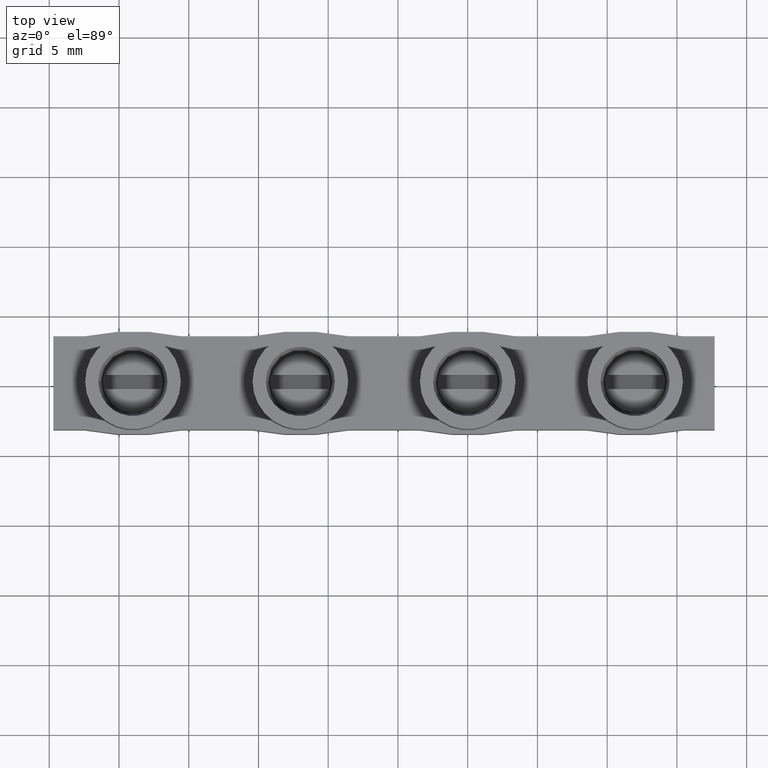
[diagram: clean part render]
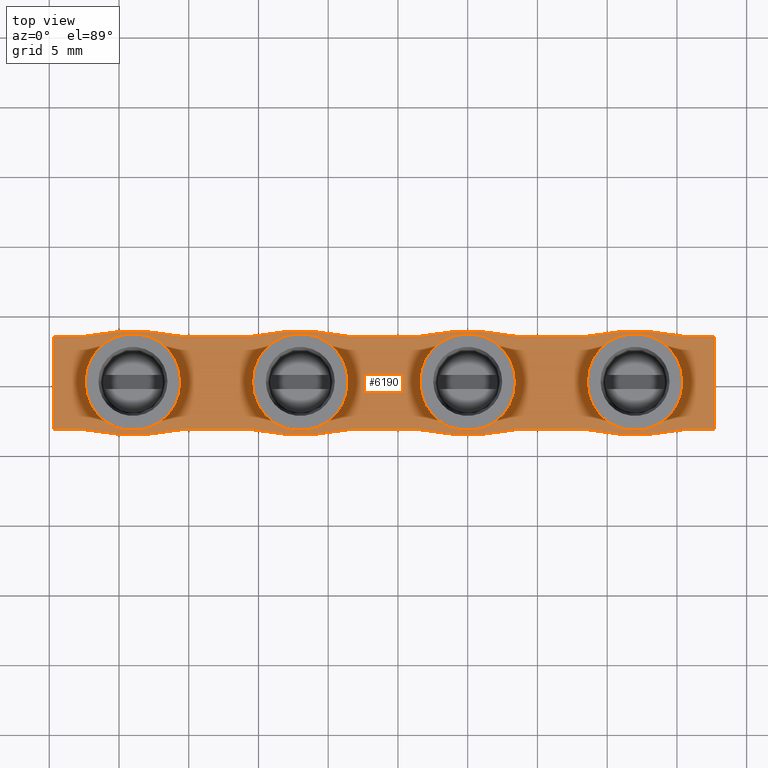
[diagram: same view with one face highlighted and labeled with its STEP entity id]
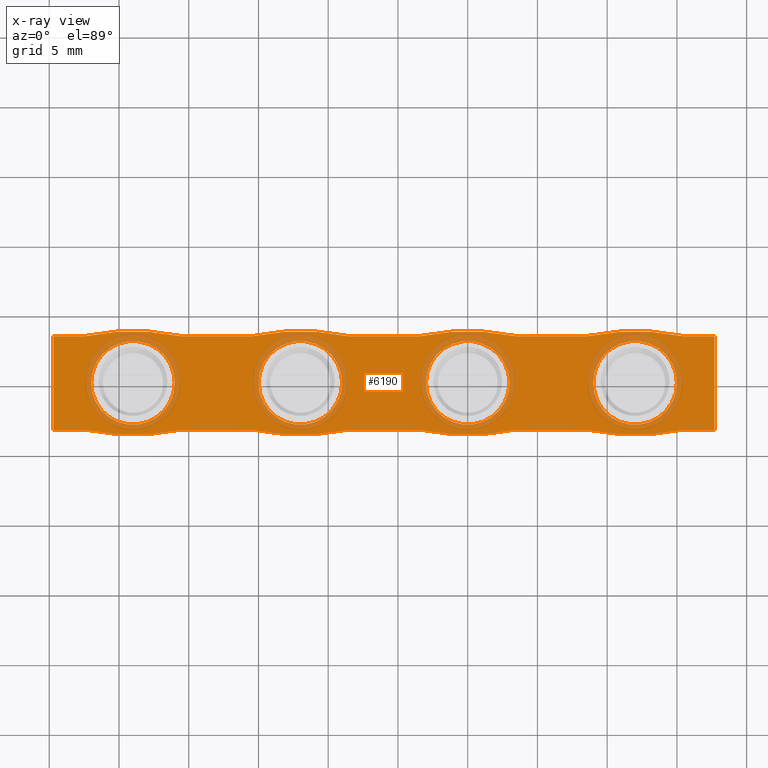
[diagram: x-ray of the same camera — body ghosted, the highlighted face saturated]
A machine part, top view. The second image highlights one B-rep face of the part: STEP entity #6190.
The next image is the same camera in x-ray: the body ghosted, the highlighted face saturated — about 16% of this face is hidden behind the body in this view.
In plain terms, the highlighted planar face has unit normal (0, 0, -1).
Its self-contained STEP definition (entity closure, byte-faithful):
#22 = EDGE_CURVE ( 'NONE', #1152, #1191, #5245, .T. ) ;
#23 = EDGE_CURVE ( 'NONE', #1161, #1189, #5252, .T. ) ;
#25 = EDGE_CURVE ( 'NONE', #1202, #503, #5256, .T. ) ;
#32 = EDGE_CURVE ( 'NONE', #1162, #1175, #5345, .T. ) ;
#39 = EDGE_CURVE ( 'NONE', #1170, #1189, #2882, .T. ) ;
#52 = EDGE_CURVE ( 'NONE', #1161, #503, #2929, .T. ) ;
#67 = EDGE_CURVE ( 'NONE', #1187, #1171, #3003, .T. ) ;
#95 = EDGE_CURVE ( 'NONE', #1213, #1144, #3060, .T. ) ;
#107 = EDGE_CURVE ( 'NONE', #1031, #1127, #4877, .T. ) ;
#327 = AXIS2_PLACEMENT_3D ( 'NONE', #5515, #5534, #5535 ) ;
#455 = VERTEX_POINT ( 'NONE', #3226 ) ;
#456 = VERTEX_POINT ( 'NONE', #3208 ) ;
#464 = VERTEX_POINT ( 'NONE', #3180 ) ;
#465 = VERTEX_POINT ( 'NONE', #3221 ) ;
#469 = VERTEX_POINT ( 'NONE', #3196 ) ;
#471 = VERTEX_POINT ( 'NONE', #3211 ) ;
#488 = VERTEX_POINT ( 'NONE', #3183 ) ;
#495 = VERTEX_POINT ( 'NONE', #3235 ) ;
#501 = VERTEX_POINT ( 'NONE', #3190 ) ;
#503 = VERTEX_POINT ( 'NONE', #3195 ) ;
#506 = VERTEX_POINT ( 'NONE', #3199 ) ;
#515 = VERTEX_POINT ( 'NONE', #2188 ) ;
#834 = EDGE_LOOP ( 'NONE', ( #2750, #2748 ) ) ;
#903 = EDGE_LOOP ( 'NONE', ( #2708, #2751, #2728, #2726, #2695, #2700, #2738, #2744, #2696, #2747, #2749, #2690, #2709, #2701, #2656, #2662, #2739, #2720, #2742, #2689 ) ) ;
#921 = EDGE_LOOP ( 'NONE', ( #2740, #2694 ) ) ;
#938 = EDGE_LOOP ( 'NONE', ( #2718, #2702 ) ) ;
#951 = EDGE_LOOP ( 'NONE', ( #2706, #2730 ) ) ;
#1031 = VERTEX_POINT ( 'NONE', #1251 ) ;
#1127 = VERTEX_POINT ( 'NONE', #1315 ) ;
#1144 = VERTEX_POINT ( 'NONE', #1320 ) ;
#1152 = VERTEX_POINT ( 'NONE', #1303 ) ;
#1156 = VERTEX_POINT ( 'NONE', #1339 ) ;
#1161 = VERTEX_POINT ( 'NONE', #1313 ) ;
#1162 = VERTEX_POINT ( 'NONE', #1362 ) ;
#1170 = VERTEX_POINT ( 'NONE', #1318 ) ;
#1171 = VERTEX_POINT ( 'NONE', #1301 ) ;
#1175 = VERTEX_POINT ( 'NONE', #1322 ) ;
#1187 = VERTEX_POINT ( 'NONE', #1410 ) ;
#1189 = VERTEX_POINT ( 'NONE', #1400 ) ;
#1191 = VERTEX_POINT ( 'NONE', #1405 ) ;
#1202 = VERTEX_POINT ( 'NONE', #1369 ) ;
#1213 = VERTEX_POINT ( 'NONE', #1391 ) ;
#1224 = VERTEX_POINT ( 'NONE', #1397 ) ;
#1251 = CARTESIAN_POINT ( 'NONE',  ( -21.00000000000000000, -4.211188893243326600E-015, -0.9000000000000014700 ) ) ;
#1301 = CARTESIAN_POINT ( 'NONE',  ( 3.426733138135080300, 3.350000000000085400, -0.9000000000000014700 ) ) ;
#1303 = CARTESIAN_POINT ( 'NONE',  ( -15.00000000000000000, -2.289291466493766400E-015, -0.9000000000000014700 ) ) ;
#1313 = CARTESIAN_POINT ( 'NONE',  ( -15.42673313813508100, 3.350000000000082700, -0.9000000000000014700 ) ) ;
#1315 = CARTESIAN_POINT ( 'NONE',  ( -27.00000000000000000, -4.578582932987532800E-015, -0.9000000000000014700 ) ) ;
#1318 = CARTESIAN_POINT ( 'NONE',  ( -3.426733138135080300, 3.350000000000084500, -0.9000000000000014700 ) ) ;
#1320 = CARTESIAN_POINT ( 'NONE',  ( -3.447100230629700900, -3.349999999999916600, -0.9000000000000014700 ) ) ;
#1322 = CARTESIAN_POINT ( 'NONE',  ( 2.999999999999999100, 3.673940397442058900E-016, -0.9000000000000014700 ) ) ;
#1339 = CARTESIAN_POINT ( 'NONE',  ( 15.00000000000000000, 1.833357540569354400E-015, -0.9000000000000014700 ) ) ;
#1362 = CARTESIAN_POINT ( 'NONE',  ( -2.999999999999999100, 0.0000000000000000000, -0.9000000000000014700 ) ) ;
#1369 = CARTESIAN_POINT ( 'NONE',  ( -27.42673313813508100, 3.350000000000080000, -0.9000000000000014700 ) ) ;
#1391 = CARTESIAN_POINT ( 'NONE',  ( -8.552899769370284800, -3.349999999999917900, -0.9000000000000014700 ) ) ;
#1397 = CARTESIAN_POINT ( 'NONE',  ( 9.000000000000001800, 1.465963500825148300E-015, -0.9000000000000014700 ) ) ;
#1400 = CARTESIAN_POINT ( 'NONE',  ( -8.573266861864919300, 3.350000000000083600, -0.9000000000000014700 ) ) ;
#1405 = CARTESIAN_POINT ( 'NONE',  ( -9.000000000000001800, -1.921897426749560600E-015, -0.9000000000000014700 ) ) ;
#1410 = CARTESIAN_POINT ( 'NONE',  ( 8.573266861864922800, 3.350000000000086200, -0.9000000000000014700 ) ) ;
#1424 = CARTESIAN_POINT ( 'NONE',  ( 12.00000000000000400, 13.45000000000008600, -0.9000000000000014700 ) ) ;
#1470 = CARTESIAN_POINT ( 'NONE',  ( 0.0000000000000000000, 0.0000000000000000000, -0.9000000000000014700 ) ) ;
#1494 = DIRECTION ( 'NONE',  ( 0.0000000000000000000, 0.0000000000000000000, 1.000000000000000000 ) ) ;
#1496 = DIRECTION ( 'NONE',  ( -1.000000000000000000, 0.0000000000000000000, 0.0000000000000000000 ) ) ;
#1502 = DIRECTION ( 'NONE',  ( 0.0000000000000000000, 0.0000000000000000000, -1.000000000000000000 ) ) ;
#1528 = DIRECTION ( 'NONE',  ( -1.000000000000000000, 0.0000000000000000000, 0.0000000000000000000 ) ) ;
#1679 = DIRECTION ( 'NONE',  ( 2.009125974575783600E-016, -1.000000000000000000, 0.0000000000000000000 ) ) ;
#1692 = LINE ( 'NONE', #1720, #4957 ) ;
#1693 = LINE ( 'NONE', #1695, #4966 ) ;
#1695 = CARTESIAN_POINT ( 'NONE',  ( -29.69999999999999600, -3.349999999999914800, -0.9000000000000014700 ) ) ;
#1717 = DIRECTION ( 'NONE',  ( 1.000000000000000000, 1.245679091791856200E-016, -0.0000000000000000000 ) ) ;
#1720 = CARTESIAN_POINT ( 'NONE',  ( -7.849999999999992500, -3.349999999999918400, -0.9000000000000014700 ) ) ;
#1767 = CARTESIAN_POINT ( 'NONE',  ( -23.99999999999999600, 13.45000000000007900, -0.9000000000000014700 ) ) ;
#1770 = DIRECTION ( 'NONE',  ( 0.0000000000000000000, 0.0000000000000000000, -1.000000000000000000 ) ) ;
#1776 = DIRECTION ( 'NONE',  ( -1.000000000000000000, 0.0000000000000000000, 0.0000000000000000000 ) ) ;
#1778 = CARTESIAN_POINT ( 'NONE',  ( -7.849999999999992500, 3.350000000000082700, -0.9000000000000014700 ) ) ;
#1791 = DIRECTION ( 'NONE',  ( -1.000000000000000000, -1.245679091791856200E-016, -0.0000000000000000000 ) ) ;
#1800 = LINE ( 'NONE', #1778, #5050 ) ;
#1986 = CARTESIAN_POINT ( 'NONE',  ( -12.00000000000000000, -2.289291466493766400E-015, -0.9000000000000014700 ) ) ;
#1987 = CARTESIAN_POINT ( 'NONE',  ( 12.00000000000000000, 1.465963500825148300E-015, -0.9000000000000014700 ) ) ;
#1989 = DIRECTION ( 'NONE',  ( 0.0000000000000000000, 0.0000000000000000000, 1.000000000000000000 ) ) ;
#1990 = DIRECTION ( 'NONE',  ( 0.0000000000000000000, 0.0000000000000000000, 1.000000000000000000 ) ) ;
#2012 = DIRECTION ( 'NONE',  ( -1.000000000000000000, 0.0000000000000000000, 0.0000000000000000000 ) ) ;
#2017 = DIRECTION ( 'NONE',  ( -1.000000000000000000, 0.0000000000000000000, 0.0000000000000000000 ) ) ;
#2102 = CARTESIAN_POINT ( 'NONE',  ( 4.150000000000007500, -3.349999999999916200, -0.9000000000000014700 ) ) ;
#2103 = LINE ( 'NONE', #2102, #5190 ) ;
#2104 = CARTESIAN_POINT ( 'NONE',  ( 12.00000000000000400, -13.25000000000034300, -0.9000000000000014700 ) ) ;
#2105 = DIRECTION ( 'NONE',  ( -0.0000000000000000000, -0.0000000000000000000, -1.000000000000000000 ) ) ;
#2106 = DIRECTION ( 'NONE',  ( 1.000000000000000000, -3.582024876648227500E-015, 0.0000000000000000000 ) ) ;
#2110 = DIRECTION ( 'NONE',  ( 0.0000000000000000000, 0.0000000000000000000, 1.000000000000000000 ) ) ;
#2115 = DIRECTION ( 'NONE',  ( 0.0000000000000000000, 1.000000000000000000, 0.0000000000000000000 ) ) ;
#2116 = CARTESIAN_POINT ( 'NONE',  ( 12.00000000000000000, 1.465963500825148300E-015, -0.9000000000000014700 ) ) ;
#2117 = DIRECTION ( 'NONE',  ( 1.000000000000000000, 1.245679091791856200E-016, -0.0000000000000000000 ) ) ;
#2124 = DIRECTION ( 'NONE',  ( -1.000000000000000000, 0.0000000000000000000, 0.0000000000000000000 ) ) ;
#2133 = CARTESIAN_POINT ( 'NONE',  ( 17.69999999999921800, -3.349999999999924100, -0.9000000000000014700 ) ) ;
#2137 = LINE ( 'NONE', #2133, #5165 ) ;
#2144 = DIRECTION ( 'NONE',  ( 1.000000000000000000, 1.245679091791856200E-016, -0.0000000000000000000 ) ) ;
#2149 = DIRECTION ( 'NONE',  ( -1.000000000000000000, 0.0000000000000000000, 0.0000000000000000000 ) ) ;
#2157 = CARTESIAN_POINT ( 'NONE',  ( -11.99999999999999600, 13.45000000000008300, -0.9000000000000014700 ) ) ;
#2164 = LINE ( 'NONE', #2175, #5217 ) ;
#2167 = DIRECTION ( 'NONE',  ( 0.0000000000000000000, 0.0000000000000000000, -1.000000000000000000 ) ) ;
#2175 = CARTESIAN_POINT ( 'NONE',  ( 28.15000000000000900, -3.349999999999912600, -0.9000000000000014700 ) ) ;
#2188 = CARTESIAN_POINT ( 'NONE',  ( 8.552899769370297300, -3.349999999999914800, -0.9000000000000014700 ) ) ;
#2656 = ORIENTED_EDGE ( 'NONE', *, *, #4644, .T. ) ;
#2662 = ORIENTED_EDGE ( 'NONE', *, *, #4632, .T. ) ;
#2689 = ORIENTED_EDGE ( 'NONE', *, *, #4680, .F. ) ;
#2690 = ORIENTED_EDGE ( 'NONE', *, *, #4659, .F. ) ;
#2694 = ORIENTED_EDGE ( 'NONE', *, *, #107, .F. ) ;
#2695 = ORIENTED_EDGE ( 'NONE', *, *, #3472, .T. ) ;
#2696 = ORIENTED_EDGE ( 'NONE', *, *, #4684, .T. ) ;
#2700 = ORIENTED_EDGE ( 'NONE', *, *, #3441, .T. ) ;
#2701 = ORIENTED_EDGE ( 'NONE', *, *, #4651, .F. ) ;
#2702 = ORIENTED_EDGE ( 'NONE', *, *, #4520, .F. ) ;
#2706 = ORIENTED_EDGE ( 'NONE', *, *, #4635, .F. ) ;
#2708 = ORIENTED_EDGE ( 'NONE', *, *, #39, .T. ) ;
#2709 = ORIENTED_EDGE ( 'NONE', *, *, #4636, .T. ) ;
#2718 = ORIENTED_EDGE ( 'NONE', *, *, #22, .F. ) ;
#2720 = ORIENTED_EDGE ( 'NONE', *, *, #4634, .F. ) ;
#2726 = ORIENTED_EDGE ( 'NONE', *, *, #25, .F. ) ;
#2728 = ORIENTED_EDGE ( 'NONE', *, *, #52, .T. ) ;
#2730 = ORIENTED_EDGE ( 'NONE', *, *, #4524, .F. ) ;
#2738 = ORIENTED_EDGE ( 'NONE', *, *, #3435, .T. ) ;
#2739 = ORIENTED_EDGE ( 'NONE', *, *, #4669, .T. ) ;
#2740 = ORIENTED_EDGE ( 'NONE', *, *, #4666, .F. ) ;
#2742 = ORIENTED_EDGE ( 'NONE', *, *, #67, .T. ) ;
#2744 = ORIENTED_EDGE ( 'NONE', *, *, #3469, .F. ) ;
#2747 = ORIENTED_EDGE ( 'NONE', *, *, #4642, .F. ) ;
#2748 = ORIENTED_EDGE ( 'NONE', *, *, #3382, .F. ) ;
#2749 = ORIENTED_EDGE ( 'NONE', *, *, #95, .T. ) ;
#2750 = ORIENTED_EDGE ( 'NONE', *, *, #32, .F. ) ;
#2751 = ORIENTED_EDGE ( 'NONE', *, *, #23, .F. ) ;
#2841 = CARTESIAN_POINT ( 'NONE',  ( -23.99999999999999600, -13.25000000000035000, -0.9000000000000014700 ) ) ;
#2846 = DIRECTION ( 'NONE',  ( -0.0000000000000000000, -0.0000000000000000000, -1.000000000000000000 ) ) ;
#2850 = DIRECTION ( 'NONE',  ( 1.000000000000000000, 0.0000000000000000000, 0.0000000000000000000 ) ) ;
#2852 = DIRECTION ( 'NONE',  ( 1.000000000000000000, 0.0000000000000000000, 0.0000000000000000000 ) ) ;
#2856 = CARTESIAN_POINT ( 'NONE',  ( -12.00000000000000000, -2.289291466493766400E-015, -0.9000000000000014700 ) ) ;
#2857 = DIRECTION ( 'NONE',  ( 0.0000000000000000000, 0.0000000000000000000, 1.000000000000000000 ) ) ;
#2858 = DIRECTION ( 'NONE',  ( -1.000000000000000000, 0.0000000000000000000, 0.0000000000000000000 ) ) ;
#2863 = CARTESIAN_POINT ( 'NONE',  ( 0.0000000000000000000, 0.0000000000000000000, -0.9000000000000014700 ) ) ;
#2864 = DIRECTION ( 'NONE',  ( 0.0000000000000000000, 0.0000000000000000000, 1.000000000000000000 ) ) ;
#2867 = DIRECTION ( 'NONE',  ( -0.0000000000000000000, -0.0000000000000000000, -1.000000000000000000 ) ) ;
#2871 = DIRECTION ( 'NONE',  ( -1.000000000000000000, 0.0000000000000000000, 0.0000000000000000000 ) ) ;
#2872 = CARTESIAN_POINT ( 'NONE',  ( -11.99999999999999600, -13.25000000000034600, -0.9000000000000014700 ) ) ;
#2881 = CARTESIAN_POINT ( 'NONE',  ( 4.150000000000007500, 3.350000000000084900, -0.9000000000000014700 ) ) ;
#2882 = LINE ( 'NONE', #2881, #5314 ) ;
#2915 = DIRECTION ( 'NONE',  ( -1.000000000000000000, -1.245679091791856200E-016, -0.0000000000000000000 ) ) ;
#2929 = LINE ( 'NONE', #2951, #5300 ) ;
#2949 = DIRECTION ( 'NONE',  ( -1.000000000000000000, -1.245679091791856200E-016, -0.0000000000000000000 ) ) ;
#2951 = CARTESIAN_POINT ( 'NONE',  ( 4.150000000000007500, 3.350000000000084900, -0.9000000000000014700 ) ) ;
#2986 = CARTESIAN_POINT ( 'NONE',  ( 4.150000000000007500, 3.350000000000084900, -0.9000000000000014700 ) ) ;
#2987 = DIRECTION ( 'NONE',  ( -1.000000000000000000, -1.245679091791856200E-016, -0.0000000000000000000 ) ) ;
#3003 = LINE ( 'NONE', #2986, #5332 ) ;
#3060 = LINE ( 'NONE', #3062, #4872 ) ;
#3062 = CARTESIAN_POINT ( 'NONE',  ( 4.150000000000007500, -3.349999999999916200, -0.9000000000000014700 ) ) ;
#3085 = DIRECTION ( 'NONE',  ( 1.000000000000000000, 1.245679091791856200E-016, -0.0000000000000000000 ) ) ;
#3096 = DIRECTION ( 'NONE',  ( -1.000000000000000000, 0.0000000000000000000, 0.0000000000000000000 ) ) ;
#3104 = CARTESIAN_POINT ( 'NONE',  ( -24.00000000000000000, -4.578582932987532800E-015, -0.9000000000000014700 ) ) ;
#3126 = DIRECTION ( 'NONE',  ( 0.0000000000000000000, 0.0000000000000000000, 1.000000000000000000 ) ) ;
#3180 = CARTESIAN_POINT ( 'NONE',  ( -29.69999999999999900, 3.350000000000080000, -0.9000000000000014700 ) ) ;
#3183 = CARTESIAN_POINT ( 'NONE',  ( -27.44710023062970100, -3.349999999999921000, -0.9000000000000014700 ) ) ;
#3190 = CARTESIAN_POINT ( 'NONE',  ( 17.69999999999921800, 3.350000000000087100, -0.9000000000000014700 ) ) ;
#3195 = CARTESIAN_POINT ( 'NONE',  ( -20.57326686186491900, 3.350000000000080900, -0.9000000000000014700 ) ) ;
#3196 = CARTESIAN_POINT ( 'NONE',  ( 15.44710023062971500, -3.349999999999914400, -0.9000000000000014700 ) ) ;
#3199 = CARTESIAN_POINT ( 'NONE',  ( -15.44710023062970100, -3.349999999999918400, -0.9000000000000014700 ) ) ;
#3208 = CARTESIAN_POINT ( 'NONE',  ( 15.42673313813508100, 3.350000000000086700, -0.9000000000000014700 ) ) ;
#3211 = CARTESIAN_POINT ( 'NONE',  ( 3.447100230629714700, -3.349999999999915700, -0.9000000000000014700 ) ) ;
#3221 = CARTESIAN_POINT ( 'NONE',  ( 17.69999999999921800, -3.349999999999913900, -0.9000000000000014700 ) ) ;
#3226 = CARTESIAN_POINT ( 'NONE',  ( -20.55289976937028500, -3.349999999999920200, -0.9000000000000014700 ) ) ;
#3235 = CARTESIAN_POINT ( 'NONE',  ( -29.69999999999999600, -3.349999999999921000, -0.9000000000000014700 ) ) ;
#3382 = EDGE_CURVE ( 'NONE', #1175, #1162, #4901, .T. ) ;
#3435 = EDGE_CURVE ( 'NONE', #495, #488, #1692, .T. ) ;
#3441 = EDGE_CURVE ( 'NONE', #464, #495, #1693, .T. ) ;
#3469 = EDGE_CURVE ( 'NONE', #455, #488, #5032, .T. ) ;
#3472 = EDGE_CURVE ( 'NONE', #1202, #464, #1800, .T. ) ;
#3494 = LINE ( 'NONE', #3525, #5233 ) ;
#3504 = DIRECTION ( 'NONE',  ( -1.000000000000000000, -1.245679091791856200E-016, -0.0000000000000000000 ) ) ;
#3512 = CARTESIAN_POINT ( 'NONE',  ( -24.00000000000000000, -4.578582932987532800E-015, -0.9000000000000014700 ) ) ;
#3513 = DIRECTION ( 'NONE',  ( -1.000000000000000000, 0.0000000000000000000, 0.0000000000000000000 ) ) ;
#3519 = DIRECTION ( 'NONE',  ( 0.0000000000000000000, 0.0000000000000000000, 1.000000000000000000 ) ) ;
#3525 = CARTESIAN_POINT ( 'NONE',  ( 28.15000000000000900, 3.350000000000088500, -0.9000000000000014700 ) ) ;
#3530 = LINE ( 'NONE', #3573, #5231 ) ;
#3543 = DIRECTION ( 'NONE',  ( 1.000000000000000000, 1.245679091791856200E-016, -0.0000000000000000000 ) ) ;
#3555 = DIRECTION ( 'NONE',  ( -0.0000000000000000000, -0.0000000000000000000, -1.000000000000000000 ) ) ;
#3557 = DIRECTION ( 'NONE',  ( 1.000000000000000000, 0.0000000000000000000, 0.0000000000000000000 ) ) ;
#3569 = CARTESIAN_POINT ( 'NONE',  ( 3.469446951953614200E-015, -13.25000000000034500, -0.9000000000000014700 ) ) ;
#3573 = CARTESIAN_POINT ( 'NONE',  ( 4.150000000000007500, -3.349999999999916200, -0.9000000000000014700 ) ) ;
#4445 = CARTESIAN_POINT ( 'NONE',  ( 3.469446951953614200E-015, 13.45000000000008500, -0.9000000000000014700 ) ) ;
#4452 = DIRECTION ( 'NONE',  ( -1.000000000000000000, 0.0000000000000000000, 0.0000000000000000000 ) ) ;
#4470 = DIRECTION ( 'NONE',  ( 0.0000000000000000000, 0.0000000000000000000, -1.000000000000000000 ) ) ;
#4520 = EDGE_CURVE ( 'NONE', #1191, #1152, #5126, .T. ) ;
#4524 = EDGE_CURVE ( 'NONE', #1156, #1224, #5153, .T. ) ;
#4632 = EDGE_CURVE ( 'NONE', #465, #501, #2137, .T. ) ;
#4634 = EDGE_CURVE ( 'NONE', #1187, #456, #5216, .T. ) ;
#4635 = EDGE_CURVE ( 'NONE', #1224, #1156, #5198, .T. ) ;
#4636 = EDGE_CURVE ( 'NONE', #471, #515, #2103, .T. ) ;
#4642 = EDGE_CURVE ( 'NONE', #1213, #506, #5191, .T. ) ;
#4644 = EDGE_CURVE ( 'NONE', #469, #465, #2164, .T. ) ;
#4651 = EDGE_CURVE ( 'NONE', #469, #515, #5196, .T. ) ;
#4659 = EDGE_CURVE ( 'NONE', #471, #1144, #5200, .T. ) ;
#4666 = EDGE_CURVE ( 'NONE', #1127, #1031, #5205, .T. ) ;
#4669 = EDGE_CURVE ( 'NONE', #501, #456, #3494, .T. ) ;
#4680 = EDGE_CURVE ( 'NONE', #1170, #1171, #5154, .T. ) ;
#4684 = EDGE_CURVE ( 'NONE', #455, #506, #3530, .T. ) ;
#4872 = VECTOR ( 'NONE', #3085, 1000.000000000000000 ) ;
#4877 = CIRCLE ( 'NONE', #4885, 2.999999999999999100 ) ;
#4885 = AXIS2_PLACEMENT_3D ( 'NONE', #3104, #3126, #3096 ) ;
#4893 = AXIS2_PLACEMENT_3D ( 'NONE', #1470, #1494, #1496 ) ;
#4901 = CIRCLE ( 'NONE', #4893, 2.999999999999999100 ) ;
#4957 = VECTOR ( 'NONE', #1717, 1000.000000000000000 ) ;
#4966 = VECTOR ( 'NONE', #1679, 1000.000000000000000 ) ;
#5032 = CIRCLE ( 'NONE', #5033, 17.15000000000021900 ) ;
#5033 = AXIS2_PLACEMENT_3D ( 'NONE', #1767, #1770, #1776 ) ;
#5050 = VECTOR ( 'NONE', #1791, 1000.000000000000000 ) ;
#5126 = CIRCLE ( 'NONE', #5127, 2.999999999999999100 ) ;
#5127 = AXIS2_PLACEMENT_3D ( 'NONE', #1986, #1990, #2012 ) ;
#5153 = CIRCLE ( 'NONE', #5158, 2.999999999999999100 ) ;
#5154 = CIRCLE ( 'NONE', #5215, 16.95000000000022000 ) ;
#5158 = AXIS2_PLACEMENT_3D ( 'NONE', #1987, #1989, #2017 ) ;
#5165 = VECTOR ( 'NONE', #2115, 1000.000000000000000 ) ;
#5190 = VECTOR ( 'NONE', #2117, 1000.000000000000000 ) ;
#5191 = CIRCLE ( 'NONE', #5221, 17.15000000000021900 ) ;
#5196 = CIRCLE ( 'NONE', #5242, 17.15000000000021900 ) ;
#5198 = CIRCLE ( 'NONE', #5226, 2.999999999999999100 ) ;
#5200 = CIRCLE ( 'NONE', #5201, 17.15000000000021900 ) ;
#5201 = AXIS2_PLACEMENT_3D ( 'NONE', #4445, #4470, #4452 ) ;
#5205 = CIRCLE ( 'NONE', #5237, 2.999999999999999100 ) ;
#5215 = AXIS2_PLACEMENT_3D ( 'NONE', #3569, #3555, #3557 ) ;
#5216 = CIRCLE ( 'NONE', #5227, 16.95000000000022000 ) ;
#5217 = VECTOR ( 'NONE', #2144, 1000.000000000000000 ) ;
#5221 = AXIS2_PLACEMENT_3D ( 'NONE', #2157, #2167, #2149 ) ;
#5226 = AXIS2_PLACEMENT_3D ( 'NONE', #2116, #2110, #2124 ) ;
#5227 = AXIS2_PLACEMENT_3D ( 'NONE', #2104, #2105, #2106 ) ;
#5231 = VECTOR ( 'NONE', #3543, 1000.000000000000000 ) ;
#5233 = VECTOR ( 'NONE', #3504, 1000.000000000000000 ) ;
#5237 = AXIS2_PLACEMENT_3D ( 'NONE', #3512, #3519, #3513 ) ;
#5242 = AXIS2_PLACEMENT_3D ( 'NONE', #1424, #1502, #1528 ) ;
#5245 = CIRCLE ( 'NONE', #5247, 2.999999999999999100 ) ;
#5247 = AXIS2_PLACEMENT_3D ( 'NONE', #2856, #2864, #2871 ) ;
#5252 = CIRCLE ( 'NONE', #5265, 16.95000000000022000 ) ;
#5256 = CIRCLE ( 'NONE', #5258, 16.95000000000022000 ) ;
#5258 = AXIS2_PLACEMENT_3D ( 'NONE', #2841, #2867, #2850 ) ;
#5265 = AXIS2_PLACEMENT_3D ( 'NONE', #2872, #2846, #2852 ) ;
#5300 = VECTOR ( 'NONE', #2949, 1000.000000000000000 ) ;
#5314 = VECTOR ( 'NONE', #2915, 1000.000000000000000 ) ;
#5332 = VECTOR ( 'NONE', #2987, 1000.000000000000000 ) ;
#5345 = CIRCLE ( 'NONE', #5350, 2.999999999999999100 ) ;
#5350 = AXIS2_PLACEMENT_3D ( 'NONE', #2863, #2857, #2858 ) ;
#5500 = FACE_BOUND ( 'NONE', #921, .T. ) ;
#5501 = FACE_BOUND ( 'NONE', #834, .T. ) ;
#5502 = PLANE ( 'NONE',  #327 ) ;
#5510 = FACE_OUTER_BOUND ( 'NONE', #903, .T. ) ;
#5513 = FACE_BOUND ( 'NONE', #951, .T. ) ;
#5515 = CARTESIAN_POINT ( 'NONE',  ( -89.85000000000005100, -3.349999999999926400, -0.9000000000000014700 ) ) ;
#5534 = DIRECTION ( 'NONE',  ( 0.0000000000000000000, 0.0000000000000000000, -1.000000000000000000 ) ) ;
#5535 = DIRECTION ( 'NONE',  ( -1.000000000000000000, 0.0000000000000000000, -0.0000000000000000000 ) ) ;
#5560 = FACE_BOUND ( 'NONE', #938, .T. ) ;
#6190 = ADVANCED_FACE ( 'NONE', ( #5501, #5510, #5513, #5560, #5500 ), #5502, .F. ) ;